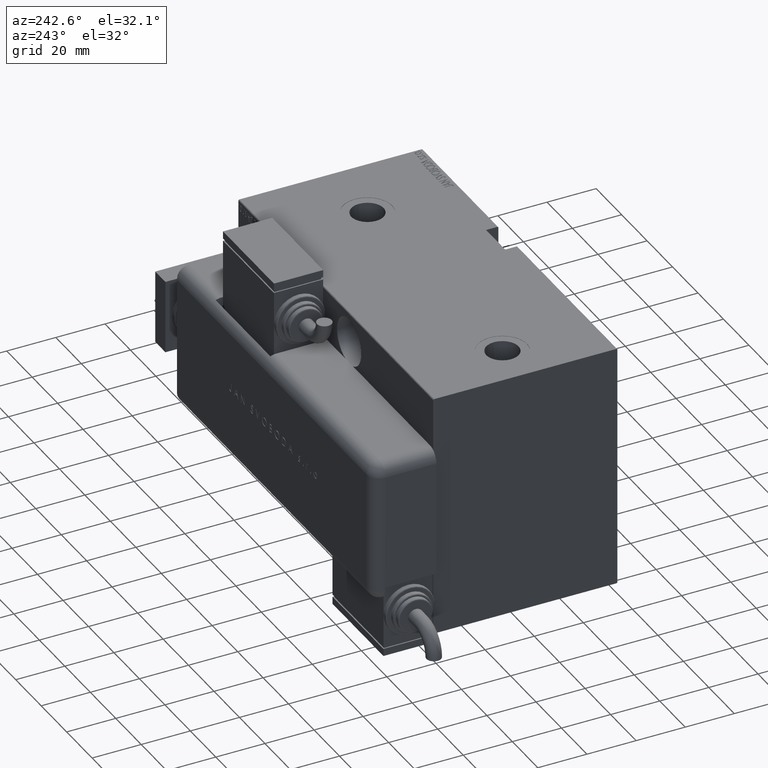
[diagram: clean part render]
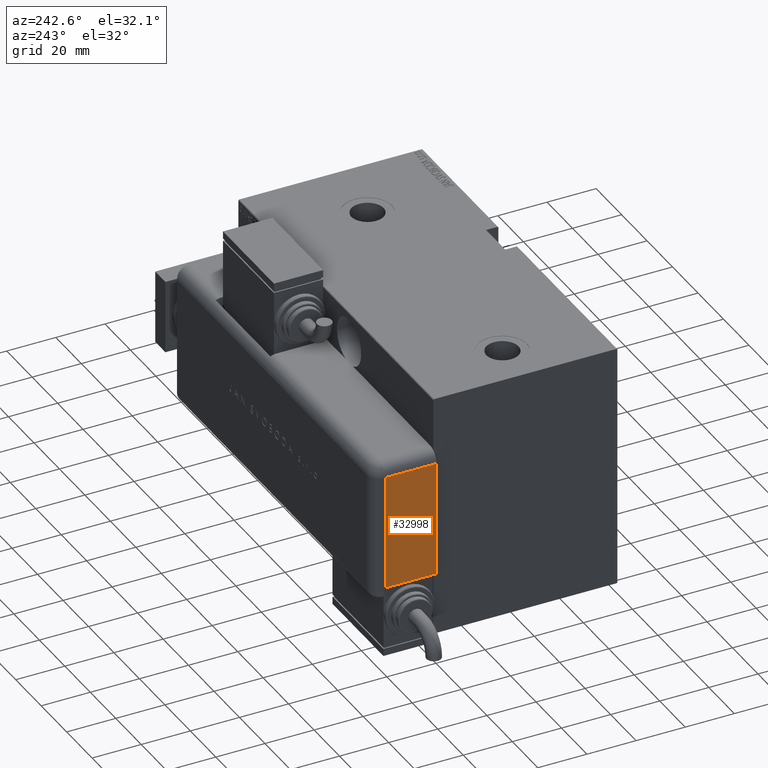
[diagram: same view with one face highlighted and labeled with its STEP entity id]
A machine part, auxiliary view. The second image highlights one B-rep face of the part: STEP entity #32998.
In plain terms, the highlighted planar face has unit normal (-1, -0, -0).
Its self-contained STEP definition (entity closure, byte-faithful):
#1734 = EDGE_LOOP ( 'NONE', ( #45363, #14420, #9844, #49302 ) ) ;
#4072 = LINE ( 'NONE', #32623, #9617 ) ;
#7135 = EDGE_CURVE ( 'NONE', #46310, #29698, #58893, .T. ) ;
#7786 = CARTESIAN_POINT ( 'NONE',  ( 0.000000000000000000, 0.000000000000000000, 0.000000000000000000 ) ) ;
#9617 = VECTOR ( 'NONE', #49996, 1000.000000000000000 ) ;
#9792 = CARTESIAN_POINT ( 'NONE',  ( -23.99999999999999645, 20.79999999999998295, 0.000000000000000000 ) ) ;
#9844 = ORIENTED_EDGE ( 'NONE', *, *, #11881, .F. ) ;
#10765 = DIRECTION ( 'NONE',  ( 0.000000000000000000, 1.000000000000000000, 0.000000000000000000 ) ) ;
#11881 = EDGE_CURVE ( 'NONE', #46310, #20330, #4072, .T. ) ;
#12347 = FACE_OUTER_BOUND ( 'NONE', #1734, .T. ) ;
#14420 = ORIENTED_EDGE ( 'NONE', *, *, #42756, .F. ) ;
#17236 = DIRECTION ( 'NONE',  ( -0.000000000000000000, 1.000000000000000000, -0.000000000000000000 ) ) ;
#17833 = CARTESIAN_POINT ( 'NONE',  ( -23.99999999999999645, 20.79999999999998295, 0.000000000000000000 ) ) ;
#18577 = CARTESIAN_POINT ( 'NONE',  ( 23.00000000000000000, 20.79999999999998295, 1.734723475976807094E-15 ) ) ;
#19823 = AXIS2_PLACEMENT_3D ( 'NONE', #7786, #45193, #35454 ) ;
#20008 = VERTEX_POINT ( 'NONE', #18577 ) ;
#20330 = VERTEX_POINT ( 'NONE', #56786 ) ;
#22630 = CARTESIAN_POINT ( 'NONE',  ( 23.99999999999999289, 20.79999999999998295, 0.000000000000000000 ) ) ;
#23737 = VECTOR ( 'NONE', #60036, 1000.000000000000000 ) ;
#25026 = CARTESIAN_POINT ( 'NONE',  ( 23.00000000000000000, 0.000000000000000000, 0.000000000000000000 ) ) ;
#25715 = PLANE ( 'NONE',  #19823 ) ;
#29698 = VERTEX_POINT ( 'NONE', #9792 ) ;
#32623 = CARTESIAN_POINT ( 'NONE',  ( 28.99999999999999645, -9.421223957302265857E-15, 0.000000000000000000 ) ) ;
#32672 = VECTOR ( 'NONE', #17236, 1000.000000000000000 ) ;
#32998 = ADVANCED_FACE ( 'NONE', ( #12347 ), #25715, .T. ) ;
#35454 = DIRECTION ( 'NONE',  ( -1.000000000000000000, 0.000000000000000000, -0.000000000000000000 ) ) ;
#37715 = VECTOR ( 'NONE', #10765, 1000.000000000000000 ) ;
#39339 = LINE ( 'NONE', #25026, #37715 ) ;
#42756 = EDGE_CURVE ( 'NONE', #20330, #20008, #39339, .T. ) ;
#45193 = DIRECTION ( 'NONE',  ( 0.000000000000000000, 0.000000000000000000, -1.000000000000000000 ) ) ;
#45363 = ORIENTED_EDGE ( 'NONE', *, *, #59508, .T. ) ;
#46310 = VERTEX_POINT ( 'NONE', #58404 ) ;
#49302 = ORIENTED_EDGE ( 'NONE', *, *, #7135, .T. ) ;
#49996 = DIRECTION ( 'NONE',  ( 1.000000000000000000, -2.079047426506382950E-15, -0.000000000000000000 ) ) ;
#56786 = CARTESIAN_POINT ( 'NONE',  ( 23.00000000000000000, 0.000000000000000000, 0.000000000000000000 ) ) ;
#58404 = CARTESIAN_POINT ( 'NONE',  ( -23.99999999999999289, 1.007682896475360021E-13, 0.000000000000000000 ) ) ;
#58893 = LINE ( 'NONE', #17833, #32672 ) ;
#59508 = EDGE_CURVE ( 'NONE', #29698, #20008, #59731, .T. ) ;
#59731 = LINE ( 'NONE', #22630, #23737 ) ;
#60036 = DIRECTION ( 'NONE',  ( 1.000000000000000000, -0.000000000000000000, -0.000000000000000000 ) ) ;